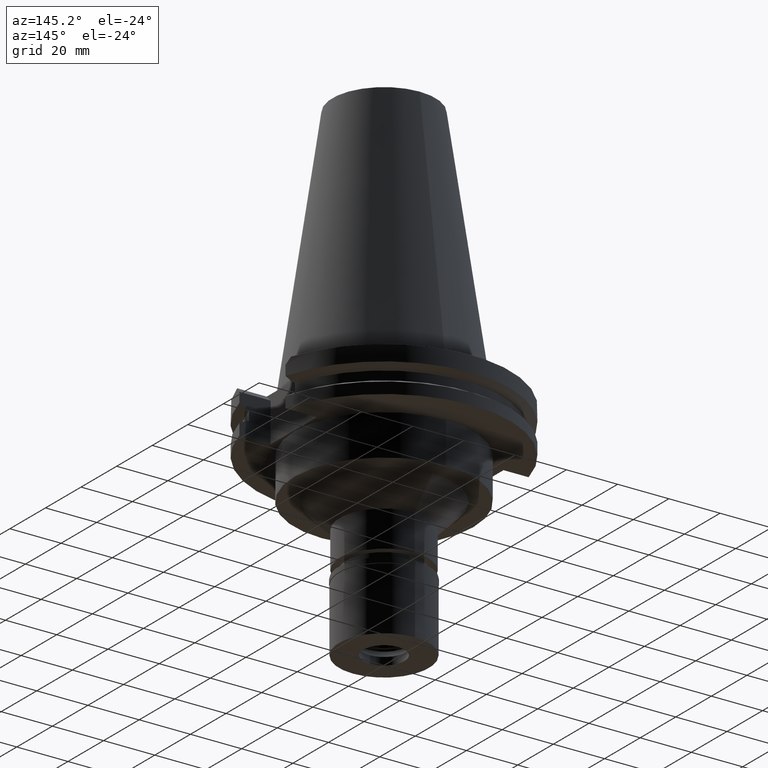
[diagram: clean part render]
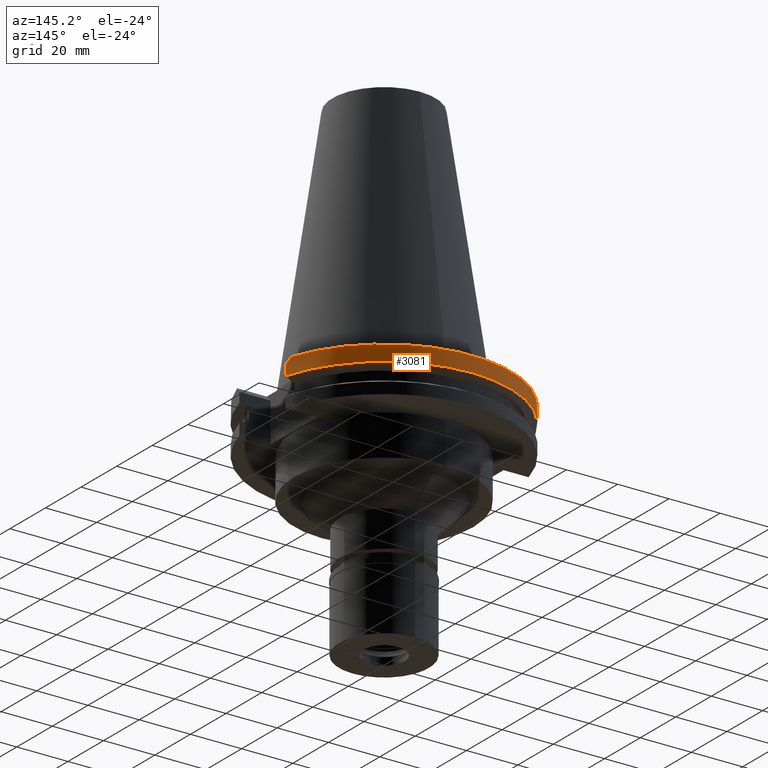
[diagram: same view with one face highlighted and labeled with its STEP entity id]
A machine part, auxiliary view. The second image highlights one B-rep face of the part: STEP entity #3081.
In plain terms, the highlighted cylindrical surface (partial cylindrical patch) has radius 49.2125 mm, axis along (0, 0, -1).
Its self-contained STEP definition (entity closure, byte-faithful):
#64 = DIRECTION ( 'NONE',  ( 0.0000000000000000000, -1.000000000000000000, 0.0000000000000000000 ) ) ;
#108 = CYLINDRICAL_SURFACE ( 'NONE', #437, 49.21249999999999858 ) ;
#114 = CARTESIAN_POINT ( 'NONE',  ( -47.27588310256999904, 13.69098379592999848, -2.964016204073000260 ) ) ;
#132 = VERTEX_POINT ( 'NONE', #2972 ) ;
#134 = CARTESIAN_POINT ( 'NONE',  ( -46.82089417396999664, 15.15499999999999936, -1.500000000000000000 ) ) ;
#158 = CARTESIAN_POINT ( 'NONE',  ( 47.47671146204000081, 12.95500000000000007, -3.700000000000000178 ) ) ;
#244 = ORIENTED_EDGE ( 'NONE', *, *, #1658, .T. ) ;
#263 = ORIENTED_EDGE ( 'NONE', *, *, #1251, .F. ) ;
#419 = VERTEX_POINT ( 'NONE', #580 ) ;
#437 = AXIS2_PLACEMENT_3D ( 'NONE', #2372, #1364, #64 ) ;
#512 = AXIS2_PLACEMENT_3D ( 'NONE', #998, #1253, #2817 ) ;
#560 = CARTESIAN_POINT ( 'NONE',  ( -47.47671146204000081, 12.95500000000000007, -3.700000000000000178 ) ) ;
#580 = CARTESIAN_POINT ( 'NONE',  ( -47.47671146204000081, 12.95500000000000007, -7.601333230924999462 ) ) ;
#611 = EDGE_CURVE ( 'NONE', #1067, #2445, #1562, .T. ) ;
#772 = ORIENTED_EDGE ( 'NONE', *, *, #1157, .T. ) ;
#793 = CIRCLE ( 'NONE', #2669, 49.21250000000001279 ) ;
#939 = CARTESIAN_POINT ( 'NONE',  ( 0.0000000000000000000, 1.121722380078999823E-14, -7.601333230925999551 ) ) ;
#966 = CARTESIAN_POINT ( 'NONE',  ( -46.82089417396999664, 15.15499999999999936, -1.500000000000000000 ) ) ;
#998 = CARTESIAN_POINT ( 'NONE',  ( 0.0000000000000000000, 2.578799997304999674E-14, -1.500000000000000000 ) ) ;
#1018 = EDGE_LOOP ( 'NONE', ( #2393, #772, #2629, #2986, #244, #263 ) ) ;
#1022 = EDGE_CURVE ( 'NONE', #1657, #2211, #2655, .T. ) ;
#1067 = VERTEX_POINT ( 'NONE', #1183 ) ;
#1157 = EDGE_CURVE ( 'NONE', #1657, #132, #2510, .T. ) ;
#1183 = CARTESIAN_POINT ( 'NONE',  ( 47.47671146204000081, 12.95500000000000007, -7.601333230924999462 ) ) ;
#1241 = CARTESIAN_POINT ( 'NONE',  ( 47.47671146204000081, 12.95500000000000007, -7.601333230924999462 ) ) ;
#1251 = EDGE_CURVE ( 'NONE', #2211, #419, #2416, .T. ) ;
#1253 = DIRECTION ( 'NONE',  ( 0.0000000000000000000, 0.0000000000000000000, -1.000000000000000000 ) ) ;
#1364 = DIRECTION ( 'NONE',  ( 0.0000000000000000000, 0.0000000000000000000, -1.000000000000000000 ) ) ;
#1371 = B_SPLINE_CURVE_WITH_KNOTS ( 'NONE', 3,
 ( #158, #1694, #1476, #3004 ),
 .UNSPECIFIED., .F., .F.,
 ( 4, 4 ),
 ( 0.0000000000000000000, 1.000000000000000000 ),
 .UNSPECIFIED. ) ;
#1383 = VECTOR ( 'NONE', #3317, 1000.000000000000000 ) ;
#1476 = CARTESIAN_POINT ( 'NONE',  ( 47.05739607796999735, 14.42433483211999956, -2.230665167879999800 ) ) ;
#1508 = CARTESIAN_POINT ( 'NONE',  ( 47.47671146204000081, 12.95500000000000007, -3.700000000000000178 ) ) ;
#1562 = LINE ( 'NONE', #1241, #1383 ) ;
#1657 = VERTEX_POINT ( 'NONE', #966 ) ;
#1658 = EDGE_CURVE ( 'NONE', #1067, #419, #793, .T. ) ;
#1694 = CARTESIAN_POINT ( 'NONE',  ( 47.27588310256999904, 13.69098379592999848, -2.964016204073000260 ) ) ;
#1699 = EDGE_CURVE ( 'NONE', #2445, #132, #1371, .T. ) ;
#1948 = DIRECTION ( 'NONE',  ( 0.0000000000000000000, 0.0000000000000000000, 1.000000000000000000 ) ) ;
#2127 = DIRECTION ( 'NONE',  ( -2.622645846769000281E-13, 3.460435492263999937E-14, -1.000000000000000000 ) ) ;
#2203 = CARTESIAN_POINT ( 'NONE',  ( -47.47671146204000081, 12.95500000000000007, -3.700000000000000178 ) ) ;
#2211 = VERTEX_POINT ( 'NONE', #2441 ) ;
#2372 = CARTESIAN_POINT ( 'NONE',  ( 0.0000000000000000000, 2.578799997304999674E-14, 110.5750000000000028 ) ) ;
#2393 = ORIENTED_EDGE ( 'NONE', *, *, #1022, .F. ) ;
#2416 = LINE ( 'NONE', #560, #2564 ) ;
#2439 = CARTESIAN_POINT ( 'NONE',  ( -47.05739607796999735, 14.42433483211999956, -2.230665167879999800 ) ) ;
#2441 = CARTESIAN_POINT ( 'NONE',  ( -47.47671146204000081, 12.95500000000000007, -3.700000000000000178 ) ) ;
#2445 = VERTEX_POINT ( 'NONE', #1508 ) ;
#2464 = DIRECTION ( 'NONE',  ( 0.9647287063660957562, 0.2632461264922989486, 0.0000000000000000000 ) ) ;
#2510 = CIRCLE ( 'NONE', #512, 49.21249999999999858 ) ;
#2564 = VECTOR ( 'NONE', #2127, 1000.000000000000000 ) ;
#2629 = ORIENTED_EDGE ( 'NONE', *, *, #1699, .F. ) ;
#2655 = B_SPLINE_CURVE_WITH_KNOTS ( 'NONE', 3,
 ( #134, #2439, #114, #2203 ),
 .UNSPECIFIED., .F., .F.,
 ( 4, 4 ),
 ( 0.0000000000000000000, 1.000000000000000000 ),
 .UNSPECIFIED. ) ;
#2669 = AXIS2_PLACEMENT_3D ( 'NONE', #939, #1948, #2464 ) ;
#2817 = DIRECTION ( 'NONE',  ( 0.0000000000000000000, 1.000000000000000000, 0.0000000000000000000 ) ) ;
#2859 = FACE_OUTER_BOUND ( 'NONE', #1018, .T. ) ;
#2972 = CARTESIAN_POINT ( 'NONE',  ( 46.82089417396999664, 15.15499999999999936, -1.500000000000000000 ) ) ;
#2986 = ORIENTED_EDGE ( 'NONE', *, *, #611, .F. ) ;
#3004 = CARTESIAN_POINT ( 'NONE',  ( 46.82089417396999664, 15.15499999999999936, -1.500000000000000000 ) ) ;
#3081 = ADVANCED_FACE ( 'NONE', ( #2859 ), #108, .T. ) ;
#3317 = DIRECTION ( 'NONE',  ( -2.622645846769000281E-13, -3.642563676068000340E-14, 1.000000000000000000 ) ) ;